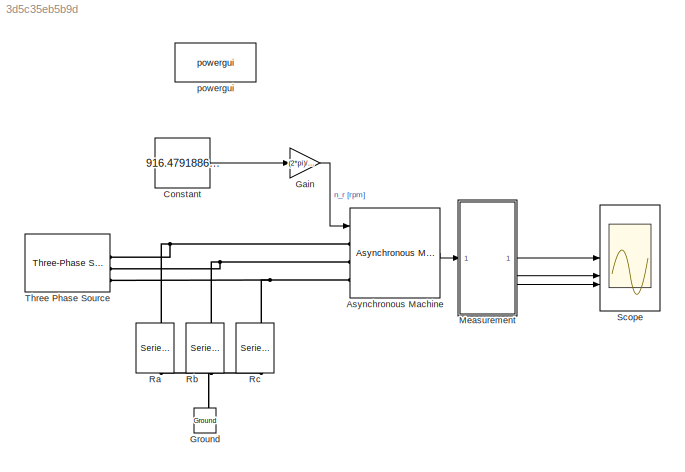
MODEL slx_3d5c35eb5b9d
KIND model
CONFIG AbsTol = auto
CONFIG EnableMultiTasking = off
CONFIG FixedStep = auto
CONFIG MaxStep = 1e-4
CONFIG MinStep = auto
CONFIG RelTol = 1e-4
CONFIG SampleTimeConstraint = Unconstrained
CONFIG SolverName = VariableStepAuto
CONFIG StartTime = 0.0
CONFIG StopTime = 2
BLOCK [Reference] Asynchronous Machine  REF=spsAsynchronousMachineSIUnitsLib/Asynchronous Machine
SI Units
  LibrarySourceBlock = sps_lib/Electrical Machines/Asynchronous Machine\nSI Units
  SourceBlock = spsAsynchronousMachineSIUnitsLib/Asynchronous Machine\nSI Units
  SourceType = Asynchronous Machine
BLOCK [Constant] Constant
  Value = 916.4791886979717
BLOCK [Gain] Gain
  Gain = (2*pi)/60
BLOCK [Reference] Ground  REF=spsGroundLib/Ground
  LibrarySourceBlock = sps_lib/Utilities/Ground
  NameLocation = right
  SourceBlock = spsGroundLib/Ground
  SourceType = Ground
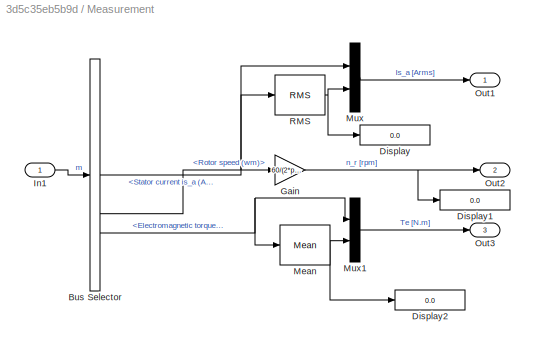
BLOCK [SubSystem] Measurement
BLOCK [BusSelector] Measurement/Bus Selector
  OutputSignals = Stator measurements.Stator current is_a (A),Mechanical.Rotor speed (wm),Mechanical.Electromagnetic torque Te (N*m)
BLOCK [Display] Measurement/Display
  Decimation = 1
BLOCK [Display] Measurement/Display1
  Decimation = 1
BLOCK [Display] Measurement/Display2
  Decimation = 1
BLOCK [Gain] Measurement/Gain
  Gain = 60/(2*pi)
BLOCK [Inport] Measurement/In1
BLOCK [Reference] Measurement/Mean  REF=spsMeanLib/Mean
  LibrarySourceBlock = sps_lib/Sensors and Measurements/Mean
  SourceBlock = spsMeanLib/Mean
  SourceType = Mean
BLOCK [Mux] Measurement/Mux
  DisplayOption = bar
  Inputs = 2
BLOCK [Mux] Measurement/Mux1
  DisplayOption = bar
  Inputs = 2
BLOCK [Outport] Measurement/Out1
BLOCK [Outport] Measurement/Out2
  Port = 2
BLOCK [Outport] Measurement/Out3
  Port = 3
BLOCK [Reference] Measurement/RMS  REF=spsRMSLib/RMS
  LibrarySourceBlock = sps_lib/Sensors and Measurements/RMS
  SourceBlock = spsRMSLib/RMS
  SourceType = RMS
BLOCK [Reference] Ra  REF=spsSeriesRLCBranchLib/Series RLC Branch
  LibrarySourceBlock = sps_lib/Passives/Series RLC Branch
  NameLocation = left
  SourceBlock = spsSeriesRLCBranchLib/Series RLC Branch
  SourceType = Series RLC Branch
BLOCK [Reference] Rb  REF=spsSeriesRLCBranchLib/Series RLC Branch
  LibrarySourceBlock = sps_lib/Passives/Series RLC Branch
  NameLocation = left
  SourceBlock = spsSeriesRLCBranchLib/Series RLC Branch
  SourceType = Series RLC Branch
BLOCK [Reference] Rc  REF=spsSeriesRLCBranchLib/Series RLC Branch
  LibrarySourceBlock = sps_lib/Passives/Series RLC Branch
  NameLocation = left
  SourceBlock = spsSeriesRLCBranchLib/Series RLC Branch
  SourceType = Series RLC Branch
BLOCK [Scope] Scope
  Floating = off
  NumInputPorts = 3
  ScopeSpecificationString = Simulink.scopes.TimeScopeBlockCfg('CurrentConfiguration', extmgr.ConfigurationSet(extmgr.Configuration('Core','General UI',true,'FigureColor',[1 1 1]),extmgr.Configuration('Core','Source UI',true),extmgr.Configuration('Sources','WiredSimulink',true),extmgr.Configuration('Visuals','Time Domain',true,'SerializedDisplays',{struct('MinYLimReal','-2309.39082','MaxYLimReal','2476.98135','YLabelReal','',...<+4213ch>
BLOCK [Reference] Three Phase Source  REF=spsThreePhaseSourceLib/Three-Phase Source
  LibrarySourceBlock = sps_lib/Sources/Three-Phase Source
  SourceBlock = spsThreePhaseSourceLib/Three-Phase Source
  SourceType = Three-Phase Source
BLOCK [Reference] powergui  REF=spspowerguiLib/powergui
  Priority = 1
  SourceBlock = spspowerguiLib/powergui
  SourceType = PSB option menu block
LINE Asynchronous Machine:1 -> Measurement:1
LINE Constant:1 -> Gain:1
LINE Gain:1 -> Asynchronous Machine:1
NET Measurement/Bus Selector:1 -> Measurement/Mux:1, Measurement/RMS:1
LINE Measurement/Bus Selector:2 -> Measurement/Gain:1
NET Measurement/Bus Selector:3 -> Measurement/Mean:1, Measurement/Mux1:1
NET Measurement/Gain:1 -> Measurement/Display1:1, Measurement/Out2:1
LINE Measurement/In1:1 -> Measurement/Bus Selector:1
NET Measurement/Mean:1 -> Measurement/Display2:1, Measurement/Mux1:2
LINE Measurement/Mux1:1 -> Measurement/Out3:1
LINE Measurement/Mux:1 -> Measurement/Out1:1
NET Measurement/RMS:1 -> Measurement/Display:1, Measurement/Mux:2
LINE Measurement:1 -> Scope:1
LINE Measurement:2 -> Scope:2
LINE Measurement:3 -> Scope:3
PNET net1: Asynchronous Machine:LConn1 -- Ra:LConn1 -- Three Phase Source:RConn1
PNET net2: Asynchronous Machine:LConn2 -- Rb:LConn1 -- Three Phase Source:RConn2
PNET net3: Asynchronous Machine:LConn3 -- Rc:LConn1 -- Three Phase Source:RConn3
PNET net4: Ground:LConn1 -- Ra:RConn1 -- Rb:RConn1 -- Rc:RConn1
note: NET lines group one-source signal fan-out (src -> all destinations, sorted); 1:1 wires keep LINE; PNET lines group multi-terminal physical nets as a canonical sorted terminal list (undirected conserving connections); 2-terminal nets keep the pairwise PLINE form
